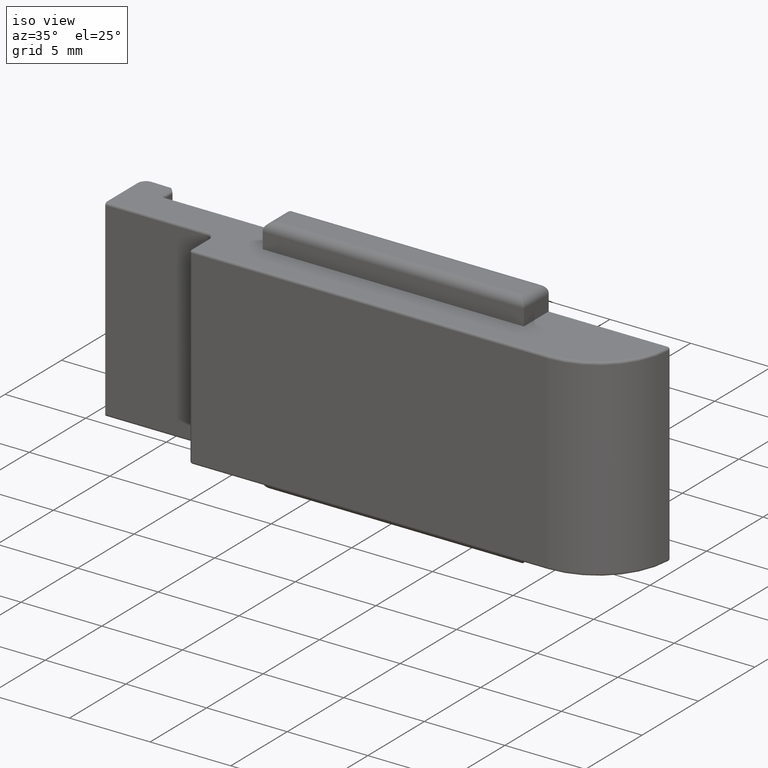
[diagram: clean part render]
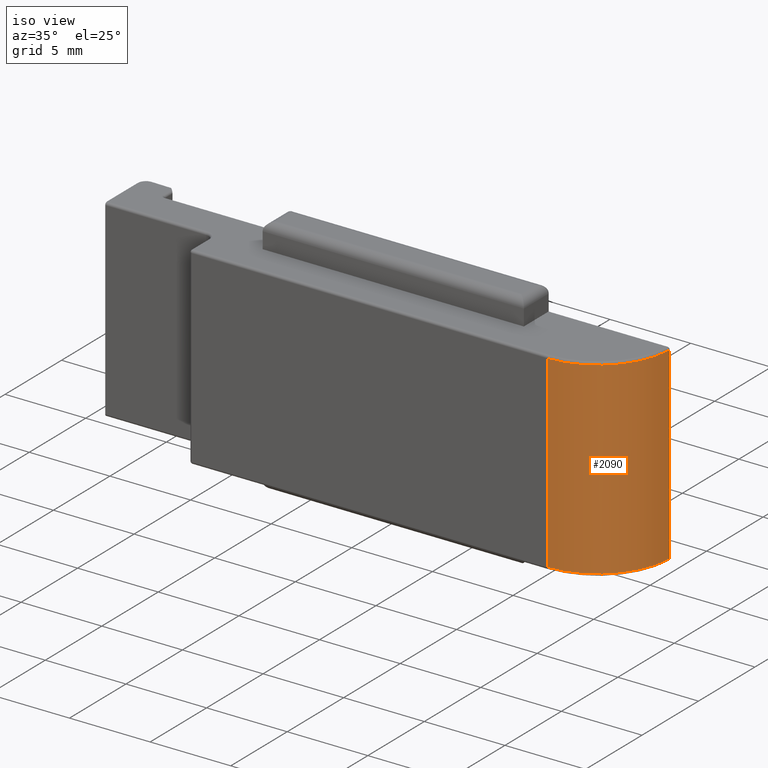
[diagram: same view with one face highlighted and labeled with its STEP entity id]
A machine part, iso view. The second image highlights one B-rep face of the part: STEP entity #2090.
In plain terms, the highlighted cylindrical surface (partial cylindrical patch) has radius 4.5 mm, axis along (0, -0, -1).
Its self-contained STEP definition (entity closure, byte-faithful):
#20 = FACE_OUTER_BOUND ( 'NONE', #1169, .T. ) ;
#80 = CARTESIAN_POINT ( 'NONE',  ( 22.20000000000005258, -5.100000000000000533, 11.85000000000000675 ) ) ;
#186 = DIRECTION ( 'NONE',  ( -1.000000000000000000, 0.000000000000000000, 0.000000000000000000 ) ) ;
#260 = VERTEX_POINT ( 'NONE', #1618 ) ;
#268 = VERTEX_POINT ( 'NONE', #1940 ) ;
#312 = ORIENTED_EDGE ( 'NONE', *, *, #2183, .T. ) ;
#434 = CARTESIAN_POINT ( 'NONE',  ( 22.20000000000005258, -5.100000000000000533, 0.1499999999999973577 ) ) ;
#543 = EDGE_CURVE ( 'NONE', #268, #260, #1461, .T. ) ;
#572 = ORIENTED_EDGE ( 'NONE', *, *, #1383, .T. ) ;
#640 = CYLINDRICAL_SURFACE ( 'NONE', #938, 4.500000000000014211 ) ;
#790 = DIRECTION ( 'NONE',  ( -1.000000000000000000, 0.000000000000000000, 0.000000000000000000 ) ) ;
#866 = CIRCLE ( 'NONE', #1058, 4.500000000000014211 ) ;
#894 = LINE ( 'NONE', #2097, #1907 ) ;
#938 = AXIS2_PLACEMENT_3D ( 'NONE', #1104, #1118, #790 ) ;
#986 = ORIENTED_EDGE ( 'NONE', *, *, #543, .T. ) ;
#1057 = CIRCLE ( 'NONE', #2013, 4.500000000000014211 ) ;
#1058 = AXIS2_PLACEMENT_3D ( 'NONE', #1171, #1378, #186 ) ;
#1104 = CARTESIAN_POINT ( 'NONE',  ( 22.20000000000005613, -0.5999999999999963141, 12.00000000000001066 ) ) ;
#1118 = DIRECTION ( 'NONE',  ( 0.000000000000000000, -6.162975822039132834E-33, -1.000000000000000000 ) ) ;
#1169 = EDGE_LOOP ( 'NONE', ( #986, #572, #2015, #312 ) ) ;
#1171 = CARTESIAN_POINT ( 'NONE',  ( 22.20000000000005613, -0.5999999999999963141, 0.1499999999999973577 ) ) ;
#1172 = DIRECTION ( 'NONE',  ( -0.000000000000000000, 6.162975822039132834E-33, 1.000000000000000000 ) ) ;
#1361 = VECTOR ( 'NONE', #1172, 1000.000000000000000 ) ;
#1378 = DIRECTION ( 'NONE',  ( -0.000000000000000000, 6.162975822039132834E-33, 1.000000000000000000 ) ) ;
#1383 = EDGE_CURVE ( 'NONE', #260, #1388, #1057, .T. ) ;
#1388 = VERTEX_POINT ( 'NONE', #80 ) ;
#1461 = LINE ( 'NONE', #1850, #1361 ) ;
#1607 = DIRECTION ( 'NONE',  ( -1.000000000000000000, 0.000000000000000000, 0.000000000000000000 ) ) ;
#1618 = CARTESIAN_POINT ( 'NONE',  ( 26.69732381778301189, -0.7551724137931024039, 11.85000000000000675 ) ) ;
#1631 = DIRECTION ( 'NONE',  ( 0.000000000000000000, -6.162975822039132834E-33, -1.000000000000000000 ) ) ;
#1815 = VERTEX_POINT ( 'NONE', #434 ) ;
#1850 = CARTESIAN_POINT ( 'NONE',  ( 26.69732381778301189, -0.7551724137931024039, 12.00000000000001066 ) ) ;
#1875 = EDGE_CURVE ( 'NONE', #1815, #1388, #894, .T. ) ;
#1907 = VECTOR ( 'NONE', #2132, 1000.000000000000000 ) ;
#1940 = CARTESIAN_POINT ( 'NONE',  ( 26.69732381778301189, -0.7551724137931024039, 0.1499999999999973577 ) ) ;
#1959 = CARTESIAN_POINT ( 'NONE',  ( 22.20000000000005613, -0.5999999999999963141, 11.85000000000000675 ) ) ;
#2013 = AXIS2_PLACEMENT_3D ( 'NONE', #1959, #1631, #1607 ) ;
#2015 = ORIENTED_EDGE ( 'NONE', *, *, #1875, .F. ) ;
#2090 = ADVANCED_FACE ( 'NONE', ( #20 ), #640, .T. ) ;
#2097 = CARTESIAN_POINT ( 'NONE',  ( 22.20000000000005258, -5.100000000000000533, 12.00000000000001066 ) ) ;
#2132 = DIRECTION ( 'NONE',  ( -0.000000000000000000, 6.162975822039132834E-33, 1.000000000000000000 ) ) ;
#2183 = EDGE_CURVE ( 'NONE', #1815, #268, #866, .T. ) ;